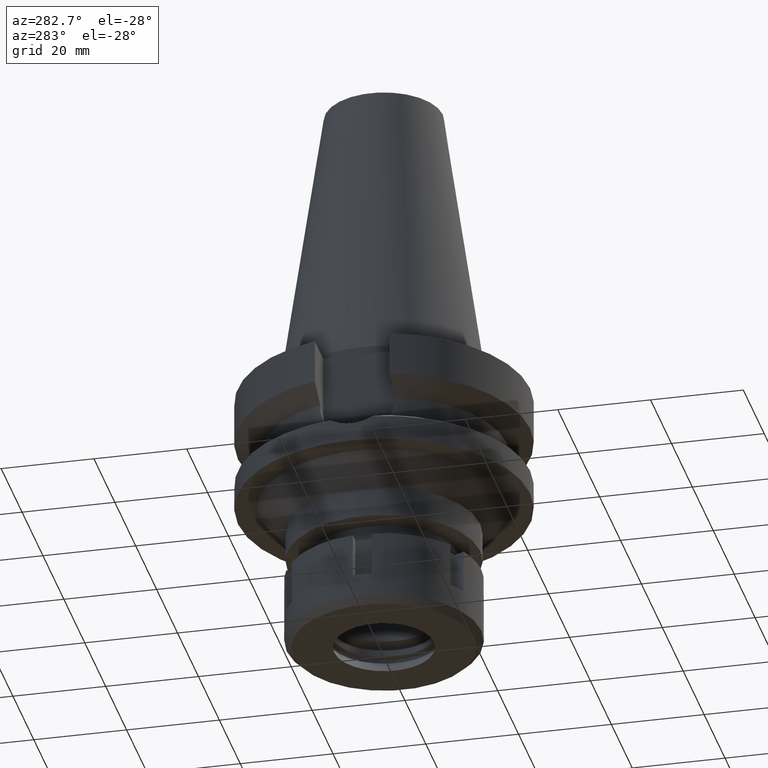
[diagram: clean part render]
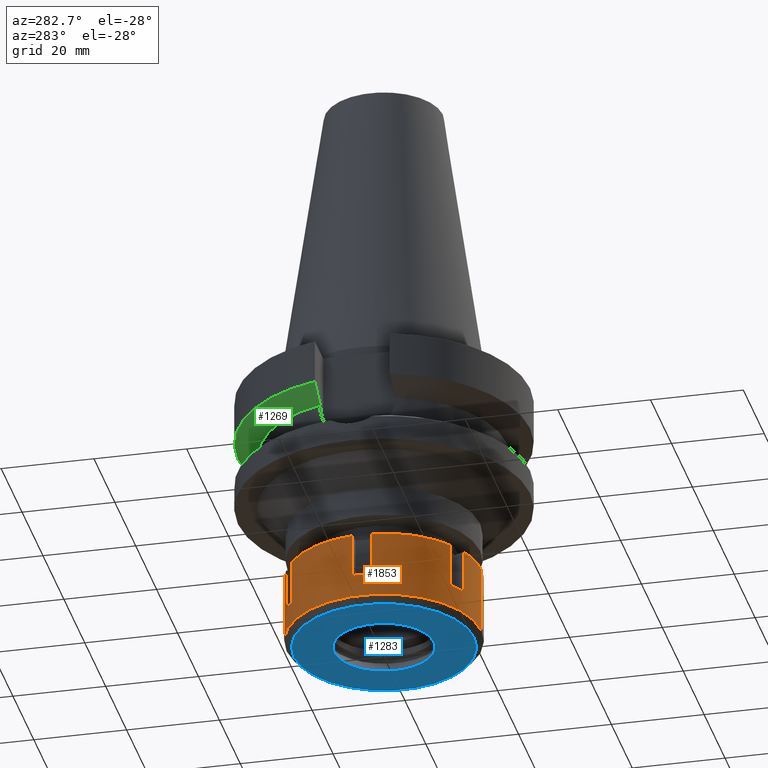
[diagram: same view with three faces highlighted in distinct colors, each labeled with its STEP entity id]
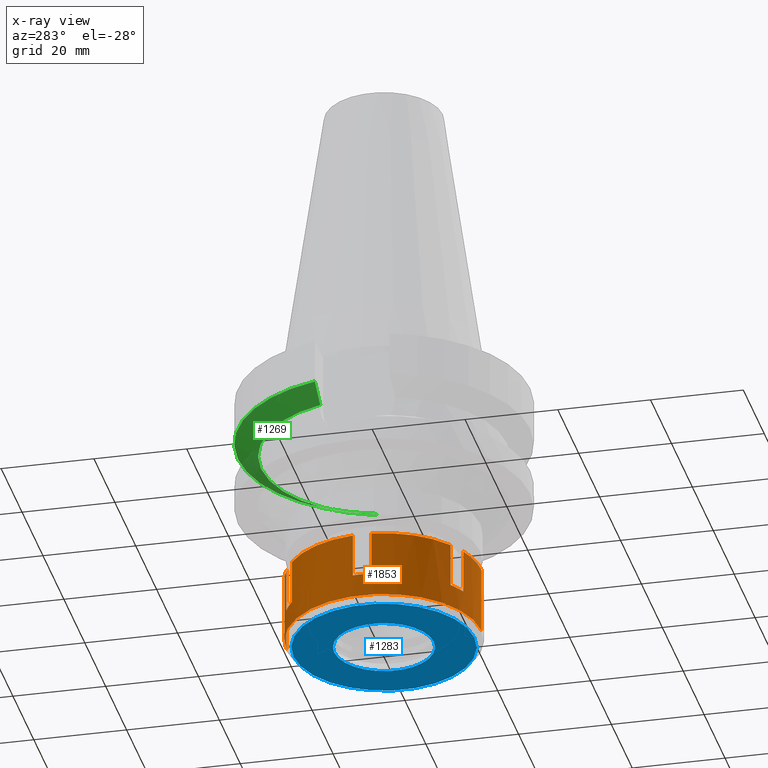
[diagram: x-ray of the same camera — body ghosted, the three highlighted faces saturated]
A machine part, auxiliary view with three faces highlighted in distinct colors.
The next image is the same camera in x-ray (body ghosted, the three faces saturated) — at least one of them is partly hidden behind the body in this view.
Their STEP definitions:

[orange] entity #1853 — the highlighted cylindrical surface (partial cylindrical patch) has radius 21 mm, axis along (0, 0, -1).
#13 = EDGE_CURVE ( 'NONE', #2577, #1918, #2734, .T. ) ;
#28 = ORIENTED_EDGE ( 'NONE', *, *, #1118, .F. ) ;
#39 = CIRCLE ( 'NONE', #1529, 21.00000000000000000 ) ;
#46 = CARTESIAN_POINT ( 'NONE',  ( 0.0000000000000000000, 21.00000000000000000, 0.0000000000000000000 ) ) ;
#53 = VERTEX_POINT ( 'NONE', #2834 ) ;
#81 = EDGE_CURVE ( 'NONE', #2577, #2837, #381, .T. ) ;
#86 = CARTESIAN_POINT ( 'NONE',  ( 0.0000000000000000000, 0.0000000000000000000, -9.500000000000000000 ) ) ;
#97 = VECTOR ( 'NONE', #2716, 1000.000000000000000 ) ;
#105 = CIRCLE ( 'NONE', #1024, 21.00000000000000000 ) ;
#178 = CIRCLE ( 'NONE', #2582, 20.99999999999999289 ) ;
#215 = DIRECTION ( 'NONE',  ( 0.0000000000000000000, 0.0000000000000000000, -1.000000000000000000 ) ) ;
#232 = CARTESIAN_POINT ( 'NONE',  ( 0.0000000000000000000, 0.0000000000000000000, -9.500000000000000000 ) ) ;
#242 = ORIENTED_EDGE ( 'NONE', *, *, #732, .T. ) ;
#288 = CARTESIAN_POINT ( 'NONE',  ( 0.0000000000000000000, -21.00000000000000000, 0.0000000000000000000 ) ) ;
#353 = VERTEX_POINT ( 'NONE', #1893 ) ;
#354 = EDGE_CURVE ( 'NONE', #892, #2837, #1306, .T. ) ;
#358 = DIRECTION ( 'NONE',  ( 0.0000000000000000000, 0.0000000000000000000, 1.000000000000000000 ) ) ;
#381 = LINE ( 'NONE', #3383, #1132 ) ;
#393 = CARTESIAN_POINT ( 'NONE',  ( 0.0000000000000000000, 0.0000000000000000000, 0.0000000000000000000 ) ) ;
#479 = VERTEX_POINT ( 'NONE', #288 ) ;
#481 = CYLINDRICAL_SURFACE ( 'NONE', #2496, 21.00000000000000000 ) ;
#484 = CARTESIAN_POINT ( 'NONE',  ( -12.18432328774999895, -17.10386699022999935, -9.500000000000000000 ) ) ;
#537 = LINE ( 'NONE', #591, #97 ) ;
#551 = CARTESIAN_POINT ( 'NONE',  ( 0.0000000000000000000, 0.0000000000000000000, 0.0000000000000000000 ) ) ;
#591 = CARTESIAN_POINT ( 'NONE',  ( -20.90454496036999998, -2.000000000000000000, -9.500000000000000000 ) ) ;
#618 = ORIENTED_EDGE ( 'NONE', *, *, #2570, .F. ) ;
#661 = DIRECTION ( 'NONE',  ( 0.0000000000000000000, 0.0000000000000000000, 1.000000000000000000 ) ) ;
#707 = EDGE_CURVE ( 'NONE', #479, #1390, #39, .T. ) ;
#722 = DIRECTION ( 'NONE',  ( 0.0000000000000000000, 0.0000000000000000000, -1.000000000000000000 ) ) ;
#732 = EDGE_CURVE ( 'NONE', #2159, #3010, #2270, .T. ) ;
#821 = VECTOR ( 'NONE', #2792, 1000.000000000000000 ) ;
#892 = VERTEX_POINT ( 'NONE', #1111 ) ;
#902 = EDGE_CURVE ( 'NONE', #2909, #2731, #105, .T. ) ;
#931 = CARTESIAN_POINT ( 'NONE',  ( -12.18432328774999895, 17.10386699022999935, -9.500000000000000000 ) ) ;
#950 = DIRECTION ( 'NONE',  ( 0.0000000000000000000, 0.0000000000000000000, -1.000000000000000000 ) ) ;
#971 = ORIENTED_EDGE ( 'NONE', *, *, #902, .T. ) ;
#988 = CARTESIAN_POINT ( 'NONE',  ( 0.0000000000000000000, -21.00000000000000000, -14.50000000000000000 ) ) ;
#992 = VERTEX_POINT ( 'NONE', #2452 ) ;
#1024 = AXIS2_PLACEMENT_3D ( 'NONE', #1391, #358, #1427 ) ;
#1063 = ORIENTED_EDGE ( 'NONE', *, *, #13, .T. ) ;
#1072 = VECTOR ( 'NONE', #1966, 1000.000000000000000 ) ;
#1090 = DIRECTION ( 'NONE',  ( -0.4152486510768949035, 0.9097079519157886818, 0.0000000000000000000 ) ) ;
#1110 = ORIENTED_EDGE ( 'NONE', *, *, #81, .F. ) ;
#1111 = CARTESIAN_POINT ( 'NONE',  ( -8.720221672615998898, -19.10386699022999935, -9.500000000000000000 ) ) ;
#1118 = EDGE_CURVE ( 'NONE', #892, #1390, #3424, .T. ) ;
#1132 = VECTOR ( 'NONE', #3060, 1000.000000000000000 ) ;
#1141 = EDGE_CURVE ( 'NONE', #1164, #3355, #3126, .T. ) ;
#1164 = VERTEX_POINT ( 'NONE', #931 ) ;
#1210 = AXIS2_PLACEMENT_3D ( 'NONE', #86, #1963, #3076 ) ;
#1214 = CARTESIAN_POINT ( 'NONE',  ( -12.18432328774999895, 17.10386699022999935, -9.500000000000000000 ) ) ;
#1267 = DIRECTION ( 'NONE',  ( 0.0000000000000000000, 0.0000000000000000000, 1.000000000000000000 ) ) ;
#1306 = CIRCLE ( 'NONE', #2961, 21.00000000000000711 ) ;
#1308 = DIRECTION ( 'NONE',  ( -0.9954545219222313834, -0.09523809523810303213, 0.0000000000000000000 ) ) ;
#1314 = VERTEX_POINT ( 'NONE', #2635 ) ;
#1325 = DIRECTION ( 'NONE',  ( -0.4152486510768949035, -0.9097079519157886818, 0.0000000000000000000 ) ) ;
#1342 = CARTESIAN_POINT ( 'NONE',  ( 0.0000000000000000000, 21.00000000000000000, -14.50000000000000000 ) ) ;
#1390 = VERTEX_POINT ( 'NONE', #2360 ) ;
#1391 = CARTESIAN_POINT ( 'NONE',  ( 0.0000000000000000000, 0.0000000000000000000, -14.50000000000000000 ) ) ;
#1427 = DIRECTION ( 'NONE',  ( 0.0000000000000000000, 1.000000000000000000, 0.0000000000000000000 ) ) ;
#1465 = DIRECTION ( 'NONE',  ( -0.5802058708454290725, -0.8144698566776411575, 0.0000000000000000000 ) ) ;
#1490 = CARTESIAN_POINT ( 'NONE',  ( -8.720221672615000585, -19.10386699022999935, -9.500000000000000000 ) ) ;
#1511 = CARTESIAN_POINT ( 'NONE',  ( 0.0000000000000000000, 0.0000000000000000000, 0.0000000000000000000 ) ) ;
#1529 = AXIS2_PLACEMENT_3D ( 'NONE', #393, #722, #2897 ) ;
#1581 = VECTOR ( 'NONE', #3405, 1000.000000000000000 ) ;
#1702 = AXIS2_PLACEMENT_3D ( 'NONE', #2745, #215, #1465 ) ;
#1853 = ADVANCED_FACE ( 'NONE', ( #3485 ), #481, .T. ) ;
#1858 = DIRECTION ( 'NONE',  ( 0.0000000000000000000, 0.0000000000000000000, -1.000000000000000000 ) ) ;
#1873 = AXIS2_PLACEMENT_3D ( 'NONE', #551, #2935, #1090 ) ;
#1893 = CARTESIAN_POINT ( 'NONE',  ( -8.720221672615000585, 19.10386699022999935, -9.500000000000000000 ) ) ;
#1918 = VERTEX_POINT ( 'NONE', #2168 ) ;
#1953 = LINE ( 'NONE', #3345, #1072 ) ;
#1963 = DIRECTION ( 'NONE',  ( 0.0000000000000000000, 0.0000000000000000000, -1.000000000000000000 ) ) ;
#1966 = DIRECTION ( 'NONE',  ( 0.0000000000000000000, 0.0000000000000000000, -1.000000000000000000 ) ) ;
#2032 = ORIENTED_EDGE ( 'NONE', *, *, #3271, .T. ) ;
#2036 = VECTOR ( 'NONE', #661, 1000.000000000000000 ) ;
#2038 = EDGE_CURVE ( 'NONE', #1314, #1918, #537, .T. ) ;
#2064 = CARTESIAN_POINT ( 'NONE',  ( 0.0000000000000000000, -21.00000000000000000, 0.0000000000000000000 ) ) ;
#2076 = DIRECTION ( 'NONE',  ( 0.0000000000000000000, -1.000000000000000000, 0.0000000000000000000 ) ) ;
#2079 = ORIENTED_EDGE ( 'NONE', *, *, #707, .T. ) ;
#2097 = CARTESIAN_POINT ( 'NONE',  ( 0.0000000000000000000, 0.0000000000000000000, 0.0000000000000000000 ) ) ;
#2134 = DIRECTION ( 'NONE',  ( 0.0000000000000000000, 0.0000000000000000000, -1.000000000000000000 ) ) ;
#2159 = VERTEX_POINT ( 'NONE', #3170 ) ;
#2168 = CARTESIAN_POINT ( 'NONE',  ( -20.90454496036999998, -2.000000000000000000, 0.0000000000000000000 ) ) ;
#2194 = EDGE_LOOP ( 'NONE', ( #618, #242, #3274, #971, #3048, #2079, #28, #2482, #1110, #1063, #2914, #3073, #2447, #2032, #2984, #2842 ) ) ;
#2270 = CIRCLE ( 'NONE', #1873, 21.00000000000000711 ) ;
#2360 = CARTESIAN_POINT ( 'NONE',  ( -8.720221672615998898, -19.10386699022999935, 0.0000000000000000000 ) ) ;
#2447 = ORIENTED_EDGE ( 'NONE', *, *, #2976, .F. ) ;
#2452 = CARTESIAN_POINT ( 'NONE',  ( -20.90454496036999998, 2.000000000000000000, 0.0000000000000000000 ) ) ;
#2482 = ORIENTED_EDGE ( 'NONE', *, *, #354, .T. ) ;
#2490 = VECTOR ( 'NONE', #3119, 1000.000000000000000 ) ;
#2496 = AXIS2_PLACEMENT_3D ( 'NONE', #2097, #3522, #2076 ) ;
#2501 = LINE ( 'NONE', #3080, #2490 ) ;
#2534 = CARTESIAN_POINT ( 'NONE',  ( -20.90454496036999998, 2.000000000000000000, 0.0000000000000000000 ) ) ;
#2565 = EDGE_CURVE ( 'NONE', #3010, #2909, #1953, .T. ) ;
#2570 = EDGE_CURVE ( 'NONE', #2159, #353, #2501, .T. ) ;
#2577 = VERTEX_POINT ( 'NONE', #3437 ) ;
#2582 = AXIS2_PLACEMENT_3D ( 'NONE', #1511, #950, #2603 ) ;
#2603 = DIRECTION ( 'NONE',  ( -0.9954545219222313834, 0.09523809523810303213, 0.0000000000000000000 ) ) ;
#2618 = EDGE_CURVE ( 'NONE', #479, #2731, #3473, .T. ) ;
#2634 = CIRCLE ( 'NONE', #1210, 21.00000000000000711 ) ;
#2635 = CARTESIAN_POINT ( 'NONE',  ( -20.90454496036999998, -2.000000000000000000, -9.500000000000000000 ) ) ;
#2716 = DIRECTION ( 'NONE',  ( 0.0000000000000000000, 0.0000000000000000000, 1.000000000000000000 ) ) ;
#2731 = VERTEX_POINT ( 'NONE', #988 ) ;
#2734 = CIRCLE ( 'NONE', #1702, 20.99999999999999645 ) ;
#2745 = CARTESIAN_POINT ( 'NONE',  ( 0.0000000000000000000, 0.0000000000000000000, 0.0000000000000000000 ) ) ;
#2792 = DIRECTION ( 'NONE',  ( 0.0000000000000000000, 0.0000000000000000000, -1.000000000000000000 ) ) ;
#2834 = CARTESIAN_POINT ( 'NONE',  ( -20.90454496036999998, 2.000000000000000000, -9.500000000000000000 ) ) ;
#2837 = VERTEX_POINT ( 'NONE', #484 ) ;
#2842 = ORIENTED_EDGE ( 'NONE', *, *, #3072, .T. ) ;
#2841 = EDGE_CURVE ( 'NONE', #1314, #53, #3489, .T. ) ;
#2877 = AXIS2_PLACEMENT_3D ( 'NONE', #3526, #2134, #1308 ) ;
#2897 = DIRECTION ( 'NONE',  ( 0.0000000000000000000, -1.000000000000000000, 0.0000000000000000000 ) ) ;
#2909 = VERTEX_POINT ( 'NONE', #1342 ) ;
#2914 = ORIENTED_EDGE ( 'NONE', *, *, #2038, .F. ) ;
#2935 = DIRECTION ( 'NONE',  ( 0.0000000000000000000, 0.0000000000000000000, -1.000000000000000000 ) ) ;
#2961 = AXIS2_PLACEMENT_3D ( 'NONE', #232, #1858, #1325 ) ;
#2976 = EDGE_CURVE ( 'NONE', #992, #53, #3304, .T. ) ;
#2984 = ORIENTED_EDGE ( 'NONE', *, *, #1141, .F. ) ;
#3010 = VERTEX_POINT ( 'NONE', #46 ) ;
#3048 = ORIENTED_EDGE ( 'NONE', *, *, #2618, .F. ) ;
#3060 = DIRECTION ( 'NONE',  ( 0.0000000000000000000, 0.0000000000000000000, -1.000000000000000000 ) ) ;
#3072 = EDGE_CURVE ( 'NONE', #1164, #353, #2634, .T. ) ;
#3073 = ORIENTED_EDGE ( 'NONE', *, *, #2841, .T. ) ;
#3076 = DIRECTION ( 'NONE',  ( -0.5802058708453158298, 0.8144698566777217597, 0.0000000000000000000 ) ) ;
#3080 = CARTESIAN_POINT ( 'NONE',  ( -8.720221672615000585, 19.10386699022999935, 0.0000000000000000000 ) ) ;
#3119 = DIRECTION ( 'NONE',  ( 0.0000000000000000000, 0.0000000000000000000, -1.000000000000000000 ) ) ;
#3126 = LINE ( 'NONE', #1214, #2036 ) ;
#3170 = CARTESIAN_POINT ( 'NONE',  ( -8.720221672615000585, 19.10386699022999935, 0.0000000000000000000 ) ) ;
#3271 = EDGE_CURVE ( 'NONE', #992, #3355, #178, .T. ) ;
#3274 = ORIENTED_EDGE ( 'NONE', *, *, #2565, .T. ) ;
#3304 = LINE ( 'NONE', #2534, #821 ) ;
#3345 = CARTESIAN_POINT ( 'NONE',  ( 0.0000000000000000000, 21.00000000000000000, 0.0000000000000000000 ) ) ;
#3355 = VERTEX_POINT ( 'NONE', #3506 ) ;
#3383 = CARTESIAN_POINT ( 'NONE',  ( -12.18432328774999895, -17.10386699022999935, 0.0000000000000000000 ) ) ;
#3384 = VECTOR ( 'NONE', #1267, 1000.000000000000000 ) ;
#3405 = DIRECTION ( 'NONE',  ( 0.0000000000000000000, 0.0000000000000000000, -1.000000000000000000 ) ) ;
#3424 = LINE ( 'NONE', #1490, #3384 ) ;
#3437 = CARTESIAN_POINT ( 'NONE',  ( -12.18432328774999895, -17.10386699022999935, 0.0000000000000000000 ) ) ;
#3473 = LINE ( 'NONE', #2064, #1581 ) ;
#3485 = FACE_OUTER_BOUND ( 'NONE', #2194, .T. ) ;
#3489 = CIRCLE ( 'NONE', #2877, 20.99999999999999289 ) ;
#3506 = CARTESIAN_POINT ( 'NONE',  ( -12.18432328774999895, 17.10386699022999935, 0.0000000000000000000 ) ) ;
#3522 = DIRECTION ( 'NONE',  ( 0.0000000000000000000, 0.0000000000000000000, -1.000000000000000000 ) ) ;
#3526 = CARTESIAN_POINT ( 'NONE',  ( 0.0000000000000000000, 0.0000000000000000000, -9.500000000000000000 ) ) ;

[blue] entity #1283 — the highlighted planar face has unit normal (0, 0, -1).
#9 = ORIENTED_EDGE ( 'NONE', *, *, #1878, .F. ) ;
#80 = CARTESIAN_POINT ( 'NONE',  ( 0.0000000000000000000, 0.0000000000000000000, -16.00000000000000000 ) ) ;
#159 = VERTEX_POINT ( 'NONE', #1533 ) ;
#186 = DIRECTION ( 'NONE',  ( 0.0000000000000000000, 1.000000000000000000, 0.0000000000000000000 ) ) ;
#454 = CARTESIAN_POINT ( 'NONE',  ( 0.0000000000000000000, 0.0000000000000000000, -16.00000000000000000 ) ) ;
#474 = FACE_OUTER_BOUND ( 'NONE', #1807, .T. ) ;
#510 = AXIS2_PLACEMENT_3D ( 'NONE', #454, #787, #2376 ) ;
#746 = AXIS2_PLACEMENT_3D ( 'NONE', #1123, #2751, #1392 ) ;
#769 = EDGE_LOOP ( 'NONE', ( #9, #873 ) ) ;
#787 = DIRECTION ( 'NONE',  ( 0.0000000000000000000, 0.0000000000000000000, -1.000000000000000000 ) ) ;
#873 = ORIENTED_EDGE ( 'NONE', *, *, #2218, .F. ) ;
#888 = ORIENTED_EDGE ( 'NONE', *, *, #2215, .F. ) ;
#896 = DIRECTION ( 'NONE',  ( 0.0000000000000000000, -1.000000000000000000, 0.0000000000000000000 ) ) ;
#1123 = CARTESIAN_POINT ( 'NONE',  ( 0.0000000000000000000, 0.0000000000000000000, -16.00000000000000000 ) ) ;
#1254 = CIRCLE ( 'NONE', #746, 19.50000000000000000 ) ;
#1283 = ADVANCED_FACE ( 'NONE', ( #474, #1886 ), #1541, .T. ) ;
#1309 = AXIS2_PLACEMENT_3D ( 'NONE', #3182, #1539, #1973 ) ;
#1392 = DIRECTION ( 'NONE',  ( 0.0000000000000000000, 1.000000000000000000, 0.0000000000000000000 ) ) ;
#1417 = CARTESIAN_POINT ( 'NONE',  ( 0.0000000000000000000, 10.75000000000000000, -16.00000000000000000 ) ) ;
#1533 = CARTESIAN_POINT ( 'NONE',  ( 0.0000000000000000000, 19.50000000000000000, -16.00000000000000000 ) ) ;
#1539 = DIRECTION ( 'NONE',  ( 0.0000000000000000000, 0.0000000000000000000, -1.000000000000000000 ) ) ;
#1541 = PLANE ( 'NONE',  #510 ) ;
#1807 = EDGE_LOOP ( 'NONE', ( #1880, #888 ) ) ;
#1813 = AXIS2_PLACEMENT_3D ( 'NONE', #3248, #1870, #186 ) ;
#1870 = DIRECTION ( 'NONE',  ( 0.0000000000000000000, 0.0000000000000000000, -1.000000000000000000 ) ) ;
#1878 = EDGE_CURVE ( 'NONE', #2517, #2650, #2737, .T. ) ;
#1880 = ORIENTED_EDGE ( 'NONE', *, *, #2007, .F. ) ;
#1886 = FACE_BOUND ( 'NONE', #769, .T. ) ;
#1973 = DIRECTION ( 'NONE',  ( 0.0000000000000000000, -1.000000000000000000, 0.0000000000000000000 ) ) ;
#1977 = VERTEX_POINT ( 'NONE', #2223 ) ;
#2007 = EDGE_CURVE ( 'NONE', #159, #1977, #1254, .T. ) ;
#2068 = DIRECTION ( 'NONE',  ( 0.0000000000000000000, 0.0000000000000000000, 1.000000000000000000 ) ) ;
#2211 = AXIS2_PLACEMENT_3D ( 'NONE', #80, #2068, #896 ) ;
#2215 = EDGE_CURVE ( 'NONE', #1977, #159, #2856, .T. ) ;
#2218 = EDGE_CURVE ( 'NONE', #2650, #2517, #2556, .T. ) ;
#2223 = CARTESIAN_POINT ( 'NONE',  ( 0.0000000000000000000, -19.50000000000000000, -16.00000000000000000 ) ) ;
#2335 = CARTESIAN_POINT ( 'NONE',  ( 0.0000000000000000000, -10.75000000000000000, -16.00000000000000000 ) ) ;
#2376 = DIRECTION ( 'NONE',  ( 0.0000000000000000000, -1.000000000000000000, 0.0000000000000000000 ) ) ;
#2517 = VERTEX_POINT ( 'NONE', #1417 ) ;
#2556 = CIRCLE ( 'NONE', #1309, 10.75000000000000000 ) ;
#2650 = VERTEX_POINT ( 'NONE', #2335 ) ;
#2737 = CIRCLE ( 'NONE', #1813, 10.75000000000000000 ) ;
#2751 = DIRECTION ( 'NONE',  ( 0.0000000000000000000, 0.0000000000000000000, 1.000000000000000000 ) ) ;
#2856 = CIRCLE ( 'NONE', #2211, 19.50000000000000000 ) ;
#3182 = CARTESIAN_POINT ( 'NONE',  ( 0.0000000000000000000, 0.0000000000000000000, -16.00000000000000000 ) ) ;
#3248 = CARTESIAN_POINT ( 'NONE',  ( 0.0000000000000000000, 0.0000000000000000000, -16.00000000000000000 ) ) ;

[green] entity #1269 — the highlighted conical surface has half-angle 60 deg.
#62 = EDGE_CURVE ( 'NONE', #2771, #1556, #3312, .T. ) ;
#76 = CARTESIAN_POINT ( 'NONE',  ( 0.0000000000000000000, 1.065333950388000029E-14, -14.45225699861000024 ) ) ;
#220 = B_SPLINE_CURVE_WITH_KNOTS ( 'NONE', 3,
 ( #1894, #1358, #500, #1876 ),
 .UNSPECIFIED., .F., .F.,
 ( 4, 4 ),
 ( 0.0000000000000000000, 1.000000000000000000 ),
 .UNSPECIFIED. ) ;
#245 = DIRECTION ( 'NONE',  ( 0.0000000000000000000, 0.0000000000000000000, 1.000000000000000000 ) ) ;
#306 = EDGE_CURVE ( 'NONE', #3344, #1556, #2708, .T. ) ;
#467 = CARTESIAN_POINT ( 'NONE',  ( -25.24772217609000080, 8.050001547756000519, -14.45224517237999962 ) ) ;
#500 = CARTESIAN_POINT ( 'NONE',  ( 26.83754554406723258, 8.049990708773448134, -13.57774923903913411 ) ) ;
#541 = ORIENTED_EDGE ( 'NONE', *, *, #1572, .F. ) ;
#794 = CARTESIAN_POINT ( 'NONE',  ( -25.24772217609000080, 8.050001547756000519, -14.45224517237999962 ) ) ;
#905 = DIRECTION ( 'NONE',  ( 0.0000000000000000000, 1.000000000000000000, 0.0000000000000000000 ) ) ;
#925 = CARTESIAN_POINT ( 'NONE',  ( 0.0000000000000000000, 1.065333950388000029E-14, -11.56550565266999975 ) ) ;
#994 = CARTESIAN_POINT ( 'NONE',  ( 25.24772414914999885, 8.049995359525999206, -14.45229245791999872 ) ) ;
#1269 = ADVANCED_FACE ( 'NONE', ( #2928 ), #2859, .T. ) ;
#1358 = CARTESIAN_POINT ( 'NONE',  ( 28.57292269647992811, 8.049998514489290713, -12.61549639329740735 ) ) ;
#1555 = CARTESIAN_POINT ( 'NONE',  ( -26.83758044562392087, 8.050003098856803874, -13.57772793616201845 ) ) ;
#1556 = VERTEX_POINT ( 'NONE', #1708 ) ;
#1564 = ORIENTED_EDGE ( 'NONE', *, *, #62, .F. ) ;
#1572 = EDGE_CURVE ( 'NONE', #3344, #2202, #3548, .T. ) ;
#1708 = CARTESIAN_POINT ( 'NONE',  ( -30.45402161851999878, 8.050004177565000418, -11.56546802296000109 ) ) ;
#1765 = AXIS2_PLACEMENT_3D ( 'NONE', #3206, #245, #3532 ) ;
#1775 = DIRECTION ( 'NONE',  ( -0.9527442516822307583, 0.3037735849057093818, 0.0000000000000000000 ) ) ;
#1876 = CARTESIAN_POINT ( 'NONE',  ( 25.24772414914999885, 8.049995359525999206, -14.45229245791999872 ) ) ;
#1894 = CARTESIAN_POINT ( 'NONE',  ( 30.45402291925000071, 8.049999256760001387, -11.56551234686999940 ) ) ;
#1957 = ORIENTED_EDGE ( 'NONE', *, *, #306, .T. ) ;
#2099 = CARTESIAN_POINT ( 'NONE',  ( -28.57295773907493697, 8.050008350049337125, -12.61547533722249703 ) ) ;
#2182 = ORIENTED_EDGE ( 'NONE', *, *, #2849, .T. ) ;
#2202 = VERTEX_POINT ( 'NONE', #994 ) ;
#2248 = DIRECTION ( 'NONE',  ( 0.0000000000000000000, 0.0000000000000000000, 1.000000000000000000 ) ) ;
#2369 = CARTESIAN_POINT ( 'NONE',  ( -30.45402161851999878, 8.050004177565000418, -11.56546802296000109 ) ) ;
#2641 = EDGE_LOOP ( 'NONE', ( #1564, #2182, #541, #1957 ) ) ;
#2708 = B_SPLINE_CURVE_WITH_KNOTS ( 'NONE', 3,
 ( #467, #1555, #2099, #2369 ),
 .UNSPECIFIED., .F., .F.,
 ( 4, 4 ),
 ( 0.0000000000000000000, 1.000000000000000000 ),
 .UNSPECIFIED. ) ;
#2771 = VERTEX_POINT ( 'NONE', #3563 ) ;
#2849 = EDGE_CURVE ( 'NONE', #2771, #2202, #220, .T. ) ;
#2859 = CONICAL_SURFACE ( 'NONE', #1765, 29.00000000000000000, 1.047197551196400456 ) ;
#2928 = FACE_OUTER_BOUND ( 'NONE', #2641, .T. ) ;
#3030 = AXIS2_PLACEMENT_3D ( 'NONE', #925, #2248, #905 ) ;
#3146 = DIRECTION ( 'NONE',  ( 0.0000000000000000000, 0.0000000000000000000, -1.000000000000000000 ) ) ;
#3206 = CARTESIAN_POINT ( 'NONE',  ( 0.0000000000000000000, 1.065333950388000029E-14, -13.00888132564000088 ) ) ;
#3267 = AXIS2_PLACEMENT_3D ( 'NONE', #76, #3146, #1775 ) ;
#3312 = CIRCLE ( 'NONE', #3030, 31.50000000000000000 ) ;
#3344 = VERTEX_POINT ( 'NONE', #794 ) ;
#3532 = DIRECTION ( 'NONE',  ( 0.0000000000000000000, 1.000000000000000000, 0.0000000000000000000 ) ) ;
#3548 = CIRCLE ( 'NONE', #3267, 26.50000000000000711 ) ;
#3563 = CARTESIAN_POINT ( 'NONE',  ( 30.45402291925000071, 8.049999256760001387, -11.56551234686999940 ) ) ;